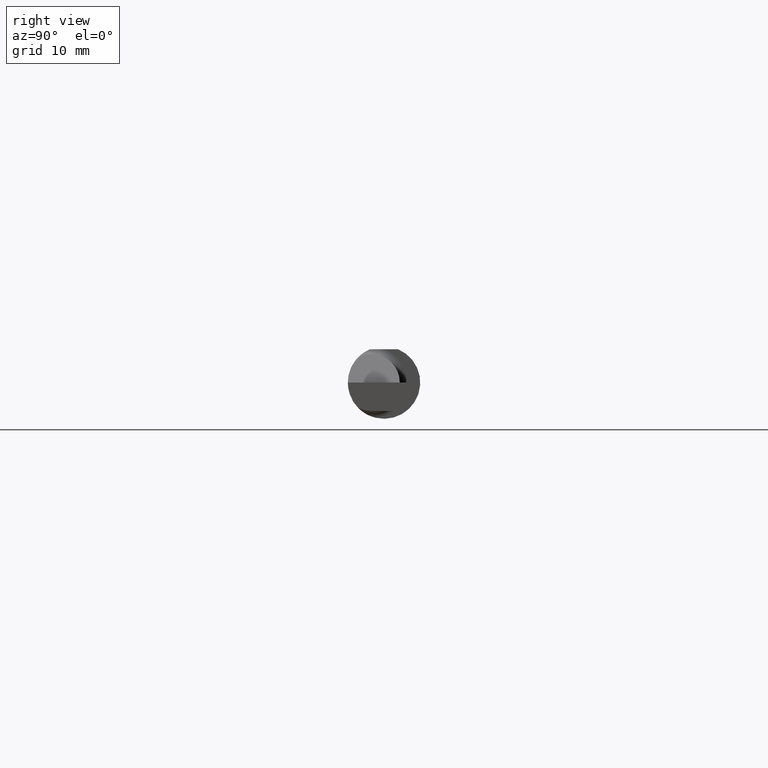
[diagram: clean part render]
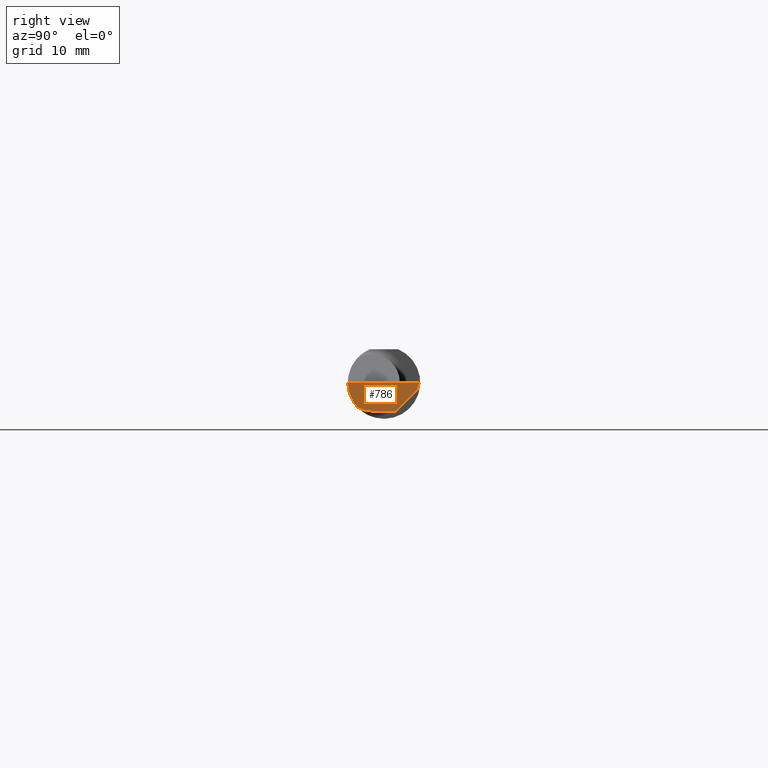
[diagram: same view with one face highlighted and labeled with its STEP entity id]
A machine part, right view. The second image highlights one B-rep face of the part: STEP entity #786.
In plain terms, the highlighted planar face has unit normal (-0.9995, 0.0174, 0.0262).
Its self-contained STEP definition (entity closure, byte-faithful):
#2 = ORIENTED_EDGE ( 'NONE', *, *, #129, .F. ) ;
#12 = CARTESIAN_POINT ( 'NONE',  ( 2.494536841675280225, -0.04385000000000003478, -0.09799999999999998990 ) ) ;
#48 = CARTESIAN_POINT ( 'NONE',  ( 2.494082244196983211, -0.07583965973232814628, -0.09404455760388207020 ) ) ;
#50 = CARTESIAN_POINT ( 'NONE',  ( 2.494256244271086054, -0.1126860773865890480, -0.06285177167860768466 ) ) ;
#70 = DIRECTION ( 'NONE',  ( 0.01744642479411244104, 0.9998477995484630343, -2.135106780035405654E-18 ) ) ;
#72 = CARTESIAN_POINT ( 'NONE',  ( 2.496652745773395576, 0.07741163850316090667, -0.09800000000000001765 ) ) ;
#82 = PLANE ( 'NONE',  #692 ) ;
#122 = VECTOR ( 'NONE', #658, 39.37007874015748854 ) ;
#127 = LINE ( 'NONE', #464, #274 ) ;
#129 = EDGE_CURVE ( 'NONE', #385, #318, #776, .T. ) ;
#133 = ORIENTED_EDGE ( 'NONE', *, *, #349, .F. ) ;
#147 = VECTOR ( 'NONE', #499, 39.37007874015747433 ) ;
#162 = EDGE_LOOP ( 'NONE', ( #188, #133, #657, #198, #362, #2, #229 ) ) ;
#165 = CARTESIAN_POINT ( 'NONE',  ( 2.494835769263151537, -0.1248351010429638169, -0.03262966116142150541 ) ) ;
#188 = ORIENTED_EDGE ( 'NONE', *, *, #700, .T. ) ;
#198 = ORIENTED_EDGE ( 'NONE', *, *, #460, .F. ) ;
#205 = DIRECTION ( 'NONE',  ( -0.03042981077198511977, -0.3254173858243485373, -0.9450807116958996890 ) ) ;
#219 = EDGE_CURVE ( 'NONE', #326, #385, #360, .T. ) ;
#221 = CARTESIAN_POINT ( 'NONE',  ( 2.493072779947982820, -0.1248043149033065263, -0.09996577117162364079 ) ) ;
#227 = VERTEX_POINT ( 'NONE', #290 ) ;
#229 = ORIENTED_EDGE ( 'NONE', *, *, #219, .F. ) ;
#252 = LINE ( 'NONE', #72, #147 ) ;
#255 = LINE ( 'NONE', #681, #387 ) ;
#274 = VECTOR ( 'NONE', #70, 39.37007874015747433 ) ;
#281 = LINE ( 'NONE', #424, #122 ) ;
#290 = CARTESIAN_POINT ( 'NONE',  ( 2.499227245409318066, 0.1138861372810480027, -0.02399999999999999356 ) ) ;
#318 = VERTEX_POINT ( 'NONE', #495 ) ;
#326 = VERTEX_POINT ( 'NONE', #677 ) ;
#349 = EDGE_CURVE ( 'NONE', #726, #430, #252, .T. ) ;
#360 =( BOUNDED_CURVE ( )  B_SPLINE_CURVE ( 3, ( #487, #50, #165, #607 ),
 .UNSPECIFIED., .F., .F. ) 
 B_SPLINE_CURVE_WITH_KNOTS ( ( 4, 4 ),
 ( 0.2190942387645745393, 0.9826237902197102470 ),
 .UNSPECIFIED. ) 
 CURVE ( )  GEOMETRIC_REPRESENTATION_ITEM ( )  RATIONAL_B_SPLINE_CURVE ( ( 1.000000000000000000, 0.9520057322288819623, 0.9520057322288819623, 1.000000000000000000 ) ) 
 REPRESENTATION_ITEM ( '' )  );
#362 = ORIENTED_EDGE ( 'NONE', *, *, #716, .F. ) ;
#372 = CARTESIAN_POINT ( 'NONE',  ( 2.497382703856815933, 0.1221956850741156148, -0.09996573249755576207 ) ) ;
#375 = DIRECTION ( 'NONE',  ( 0.02618093032612054880, 0.000000000000000000, 0.9996572206948033390 ) ) ;
#385 = VERTEX_POINT ( 'NONE', #671 ) ;
#387 = VECTOR ( 'NONE', #205, 39.37007874015748143 ) ;
#401 = CARTESIAN_POINT ( 'NONE',  ( 2.495997960279815242, 0.03988613728104774270, -0.09799999999999996214 ) ) ;
#424 = CARTESIAN_POINT ( 'NONE',  ( 2.499132853025170853, 0.1117231085775383936, -0.02616302870350959223 ) ) ;
#428 = CARTESIAN_POINT ( 'NONE',  ( 2.494253479596433731, -0.06008937020638525917, -0.09799999999999998990 ) ) ;
#430 = VERTEX_POINT ( 'NONE', #12 ) ;
#442 =( BOUNDED_CURVE ( )  B_SPLINE_CURVE ( 3, ( #600, #48, #428, #735 ),
 .UNSPECIFIED., .F., .F. ) 
 B_SPLINE_CURVE_WITH_KNOTS ( ( 4, 4 ),
 ( 0.09562308769838284706, 0.5877155292608428061 ),
 .UNSPECIFIED. ) 
 CURVE ( )  GEOMETRIC_REPRESENTATION_ITEM ( )  RATIONAL_B_SPLINE_CURVE ( ( 1.000000000000000000, 0.9799220177372778284, 0.9799220177372778284, 1.000000000000000000 ) ) 
 REPRESENTATION_ITEM ( '' )  );
#443 = FACE_OUTER_BOUND ( 'NONE', #162, .T. ) ;
#460 = EDGE_CURVE ( 'NONE', #691, #227, #255, .T. ) ;
#462 = DIRECTION ( 'NONE',  ( 0.02617296143184117893, -0.0004568507411563391195, 0.9996573249755575929 ) ) ;
#464 = CARTESIAN_POINT ( 'NONE',  ( 2.494380489674781209, -0.1999019447116721915, 6.881915332554697616E-19 ) ) ;
#481 = VECTOR ( 'NONE', #462, 39.37007874015748854 ) ;
#487 = CARTESIAN_POINT ( 'NONE',  ( 2.494033449660866708, -0.09015216647662485649, -0.08637192471845764330 ) ) ;
#495 = CARTESIAN_POINT ( 'NONE',  ( 2.495690077103728921, -0.1248499999950964945, 8.800986592364463999E-18 ) ) ;
#499 = DIRECTION ( 'NONE',  ( -0.01744642479411243410, -0.9998477995484630343, 2.816882764651549218E-16 ) ) ;
#576 = DIRECTION ( 'NONE',  ( -0.9995051766793263681, 0.01744044634006990460, 0.02617694830739123249 ) ) ;
#600 = CARTESIAN_POINT ( 'NONE',  ( 2.494033449660866708, -0.09015216647662485649, -0.08637192471845764330 ) ) ;
#607 = CARTESIAN_POINT ( 'NONE',  ( 2.495688583004118666, -0.1248499869621840785, -5.705736120965713455E-05 ) ) ;
#637 = EDGE_CURVE ( 'NONE', #227, #726, #281, .T. ) ;
#657 = ORIENTED_EDGE ( 'NONE', *, *, #637, .F. ) ;
#658 = DIRECTION ( 'NONE',  ( -0.03084274406794365597, -0.7067703747110382073, -0.7067703747110356538 ) ) ;
#669 = CARTESIAN_POINT ( 'NONE',  ( 2.500000000000000000, 0.1221500000000000224, 1.614031285319217924E-16 ) ) ;
#671 = CARTESIAN_POINT ( 'NONE',  ( 2.495688583004118666, -0.1248499869621840785, -5.705736120965713455E-05 ) ) ;
#677 = CARTESIAN_POINT ( 'NONE',  ( 2.494033449660866708, -0.09015216647662485649, -0.08637192471845764330 ) ) ;
#681 = CARTESIAN_POINT ( 'NONE',  ( 2.499907402661638134, 0.1211597610527450908, -0.002875862722115925512 ) ) ;
#691 = VERTEX_POINT ( 'NONE', #669 ) ;
#692 = AXIS2_PLACEMENT_3D ( 'NONE', #372, #576, #375 ) ;
#700 = EDGE_CURVE ( 'NONE', #326, #430, #442, .T. ) ;
#716 = EDGE_CURVE ( 'NONE', #318, #691, #127, .T. ) ;
#726 = VERTEX_POINT ( 'NONE', #401 ) ;
#735 = CARTESIAN_POINT ( 'NONE',  ( 2.494536841675280225, -0.04385000000000003478, -0.09799999999999998990 ) ) ;
#776 = LINE ( 'NONE', #221, #481 ) ;
#786 = ADVANCED_FACE ( 'NONE', ( #443 ), #82, .F. ) ;